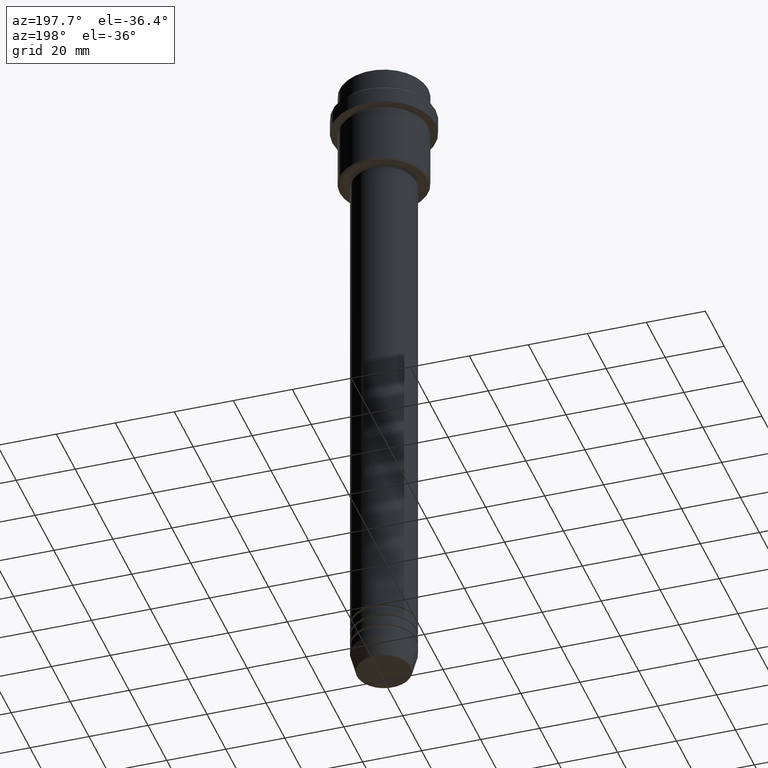
[diagram: clean part render]
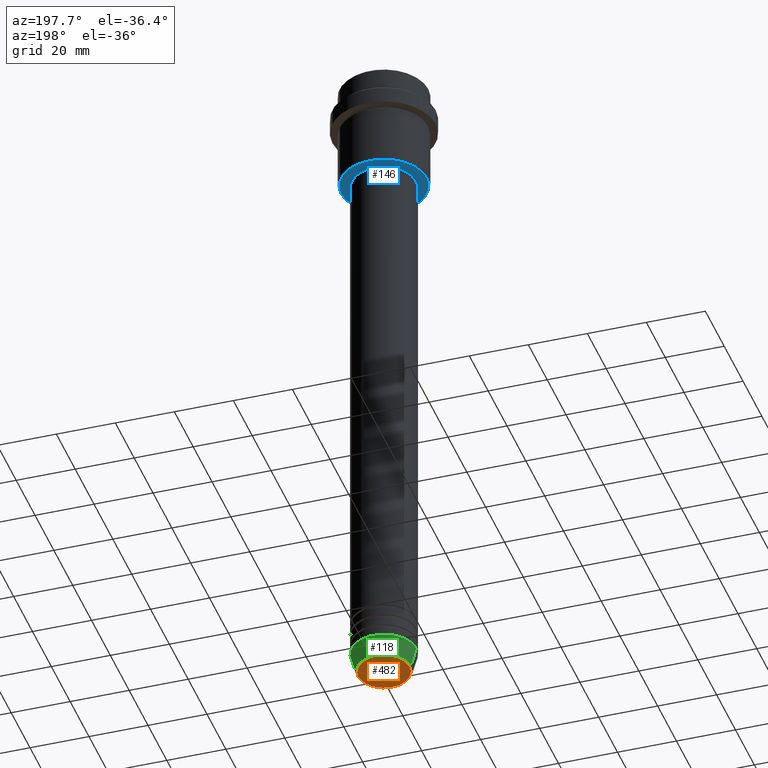
[diagram: same view with three faces highlighted in distinct colors, each labeled with its STEP entity id]
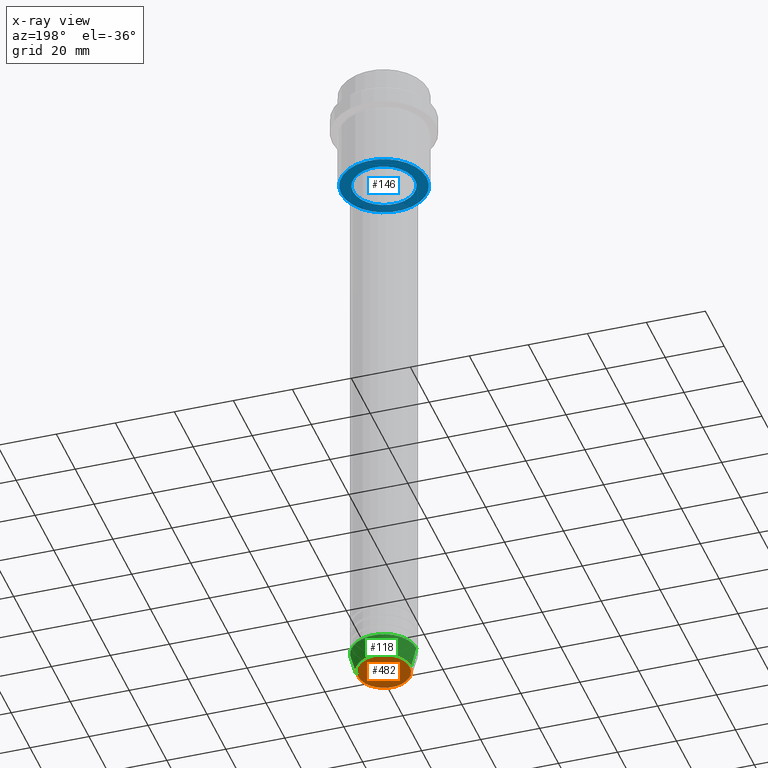
[diagram: x-ray of the same camera — body ghosted, the three highlighted faces saturated]
A machine part, auxiliary view with three faces highlighted in distinct colors.
The next image is the same camera in x-ray (body ghosted, the three faces saturated) — at least one of them is partly hidden behind the body in this view.
Their STEP definitions:

[orange] entity #482 — the highlighted planar face has unit normal (0, -0, 1).
#72 = EDGE_CURVE ( 'NONE', #1139, #1264, #270, .T. ) ;
#233 = CARTESIAN_POINT ( 'NONE',  ( 0.000000000000000000, 0.000000000000000000, -231.0000000000000284 ) ) ;
#261 = PLANE ( 'NONE',  #295 ) ;
#270 = CIRCLE ( 'NONE', #1342, 8.740692158992661831 ) ;
#295 = AXIS2_PLACEMENT_3D ( 'NONE', #684, #1125, #1015 ) ;
#311 = CARTESIAN_POINT ( 'NONE',  ( 8.740692158992661831, 0.000000000000000000, -231.0000000000000284 ) ) ;
#348 = DIRECTION ( 'NONE',  ( 0.000000000000000000, 0.000000000000000000, -1.000000000000000000 ) ) ;
#351 = FACE_OUTER_BOUND ( 'NONE', #472, .T. ) ;
#352 = DIRECTION ( 'NONE',  ( 1.000000000000000000, 0.000000000000000000, 0.000000000000000000 ) ) ;
#353 = EDGE_CURVE ( 'NONE', #1264, #1139, #886, .T. ) ;
#460 = CARTESIAN_POINT ( 'NONE',  ( 0.000000000000000000, 0.000000000000000000, -231.0000000000000284 ) ) ;
#472 = EDGE_LOOP ( 'NONE', ( #1167, #1299 ) ) ;
#482 = ADVANCED_FACE ( 'NONE', ( #351 ), #261, .F. ) ;
#606 = AXIS2_PLACEMENT_3D ( 'NONE', #233, #348, #864 ) ;
#684 = CARTESIAN_POINT ( 'NONE',  ( 0.000000000000000000, 0.000000000000000000, -231.0000000000000284 ) ) ;
#864 = DIRECTION ( 'NONE',  ( 1.000000000000000000, 0.000000000000000000, 0.000000000000000000 ) ) ;
#886 = CIRCLE ( 'NONE', #606, 8.740692158992661831 ) ;
#900 = DIRECTION ( 'NONE',  ( 0.000000000000000000, 0.000000000000000000, -1.000000000000000000 ) ) ;
#938 = CARTESIAN_POINT ( 'NONE',  ( -8.740692158992661831, 1.099999016768740048E-15, -231.0000000000000284 ) ) ;
#1015 = DIRECTION ( 'NONE',  ( 1.000000000000000000, 0.000000000000000000, 0.000000000000000000 ) ) ;
#1125 = DIRECTION ( 'NONE',  ( 0.000000000000000000, -0.000000000000000000, 1.000000000000000000 ) ) ;
#1139 = VERTEX_POINT ( 'NONE', #938 ) ;
#1167 = ORIENTED_EDGE ( 'NONE', *, *, #353, .T. ) ;
#1264 = VERTEX_POINT ( 'NONE', #311 ) ;
#1299 = ORIENTED_EDGE ( 'NONE', *, *, #72, .T. ) ;
#1342 = AXIS2_PLACEMENT_3D ( 'NONE', #460, #900, #352 ) ;

[blue] entity #146 — the highlighted planar face has unit normal (0, 0, -1).
#12 = EDGE_LOOP ( 'NONE', ( #494, #784 ) ) ;
#31 = CARTESIAN_POINT ( 'NONE',  ( 0.000000000000000000, 0.000000000000000000, -36.00000000000001421 ) ) ;
#93 = EDGE_CURVE ( 'NONE', #1098, #273, #868, .T. ) ;
#128 = FACE_BOUND ( 'NONE', #1406, .T. ) ;
#135 = CIRCLE ( 'NONE', #1277, 10.49999999999999289 ) ;
#146 = ADVANCED_FACE ( 'NONE', ( #986, #128 ), #445, .T. ) ;
#192 = DIRECTION ( 'NONE',  ( -1.000000000000000000, 0.000000000000000000, 0.000000000000000000 ) ) ;
#202 = CIRCLE ( 'NONE', #380, 10.49999999999999289 ) ;
#227 = DIRECTION ( 'NONE',  ( -1.000000000000000000, 0.000000000000000000, -0.000000000000000000 ) ) ;
#273 = VERTEX_POINT ( 'NONE', #1286 ) ;
#344 = AXIS2_PLACEMENT_3D ( 'NONE', #567, #1001, #227 ) ;
#378 = ORIENTED_EDGE ( 'NONE', *, *, #763, .T. ) ;
#380 = AXIS2_PLACEMENT_3D ( 'NONE', #1285, #1177, #596 ) ;
#418 = VERTEX_POINT ( 'NONE', #781 ) ;
#424 = CARTESIAN_POINT ( 'NONE',  ( 0.000000000000000000, 0.000000000000000000, -36.00000000000001421 ) ) ;
#430 = AXIS2_PLACEMENT_3D ( 'NONE', #1034, #1268, #192 ) ;
#445 = PLANE ( 'NONE',  #344 ) ;
#494 = ORIENTED_EDGE ( 'NONE', *, *, #712, .T. ) ;
#524 = DIRECTION ( 'NONE',  ( 1.000000000000000000, 0.000000000000000000, 0.000000000000000000 ) ) ;
#532 = VERTEX_POINT ( 'NONE', #590 ) ;
#567 = CARTESIAN_POINT ( 'NONE',  ( 0.000000000000000000, 15.00000000000000000, -36.00000000000001421 ) ) ;
#590 = CARTESIAN_POINT ( 'NONE',  ( 10.49999999999999289, 0.000000000000000000, -36.00000000000001421 ) ) ;
#596 = DIRECTION ( 'NONE',  ( 1.000000000000000000, 0.000000000000000000, 0.000000000000000000 ) ) ;
#712 = EDGE_CURVE ( 'NONE', #273, #1098, #998, .T. ) ;
#763 = EDGE_CURVE ( 'NONE', #418, #532, #202, .T. ) ;
#781 = CARTESIAN_POINT ( 'NONE',  ( -10.49999999999999289, 1.285879139104720042E-15, -36.00000000000001421 ) ) ;
#784 = ORIENTED_EDGE ( 'NONE', *, *, #93, .T. ) ;
#807 = CARTESIAN_POINT ( 'NONE',  ( -14.49999999999998401, 1.806354028742345013E-15, -36.00000000000001421 ) ) ;
#868 = CIRCLE ( 'NONE', #1364, 14.49999999999998401 ) ;
#870 = DIRECTION ( 'NONE',  ( -0.000000000000000000, -0.000000000000000000, 1.000000000000000000 ) ) ;
#986 = FACE_OUTER_BOUND ( 'NONE', #12, .T. ) ;
#998 = CIRCLE ( 'NONE', #430, 14.49999999999998401 ) ;
#1001 = DIRECTION ( 'NONE',  ( 0.000000000000000000, 0.000000000000000000, -1.000000000000000000 ) ) ;
#1027 = ORIENTED_EDGE ( 'NONE', *, *, #1281, .T. ) ;
#1034 = CARTESIAN_POINT ( 'NONE',  ( 0.000000000000000000, 0.000000000000000000, -36.00000000000001421 ) ) ;
#1098 = VERTEX_POINT ( 'NONE', #807 ) ;
#1177 = DIRECTION ( 'NONE',  ( -0.000000000000000000, -0.000000000000000000, 1.000000000000000000 ) ) ;
#1268 = DIRECTION ( 'NONE',  ( 0.000000000000000000, 0.000000000000000000, -1.000000000000000000 ) ) ;
#1277 = AXIS2_PLACEMENT_3D ( 'NONE', #424, #870, #524 ) ;
#1281 = EDGE_CURVE ( 'NONE', #532, #418, #135, .T. ) ;
#1285 = CARTESIAN_POINT ( 'NONE',  ( 0.000000000000000000, 0.000000000000000000, -36.00000000000001421 ) ) ;
#1286 = CARTESIAN_POINT ( 'NONE',  ( 14.49999999999998401, 0.000000000000000000, -36.00000000000001421 ) ) ;
#1335 = DIRECTION ( 'NONE',  ( -1.000000000000000000, 0.000000000000000000, 0.000000000000000000 ) ) ;
#1345 = DIRECTION ( 'NONE',  ( 0.000000000000000000, 0.000000000000000000, -1.000000000000000000 ) ) ;
#1364 = AXIS2_PLACEMENT_3D ( 'NONE', #31, #1345, #1335 ) ;
#1406 = EDGE_LOOP ( 'NONE', ( #1027, #378 ) ) ;

[green] entity #118 — the highlighted conical surface has half-angle 15 deg.
#11 = CARTESIAN_POINT ( 'NONE',  ( 11.00000000000000000, 0.000000000000000000, -224.0000000000000284 ) ) ;
#16 = DIRECTION ( 'NONE',  ( 1.000000000000000000, 0.000000000000000000, 0.000000000000000000 ) ) ;
#27 = EDGE_LOOP ( 'NONE', ( #987, #914, #1163, #1373 ) ) ;
#55 = DIRECTION ( 'NONE',  ( -0.000000000000000000, -0.000000000000000000, 1.000000000000000000 ) ) ;
#56 = VERTEX_POINT ( 'NONE', #451 ) ;
#68 = VERTEX_POINT ( 'NONE', #11 ) ;
#118 = ADVANCED_FACE ( 'NONE', ( #794 ), #723, .T. ) ;
#183 = DIRECTION ( 'NONE',  ( 0.2588190451025205174, 0.000000000000000000, 0.9659258262890684232 ) ) ;
#286 = LINE ( 'NONE', #1160, #476 ) ;
#365 = CIRCLE ( 'NONE', #1187, 9.223655072137201927 ) ;
#451 = CARTESIAN_POINT ( 'NONE',  ( -9.223655072137201927, 1.238341722557647793E-15, -230.6294095225512990 ) ) ;
#474 = CARTESIAN_POINT ( 'NONE',  ( 0.000000000000000000, 0.000000000000000000, -224.0000000000000284 ) ) ;
#476 = VECTOR ( 'NONE', #183, 1000.000000000000114 ) ;
#582 = CARTESIAN_POINT ( 'NONE',  ( -11.00000000000000000, 1.347111479062088405E-15, -224.0000000000000284 ) ) ;
#586 = VERTEX_POINT ( 'NONE', #1279 ) ;
#597 = CARTESIAN_POINT ( 'NONE',  ( 0.000000000000000000, 0.000000000000000000, -230.6294095225512990 ) ) ;
#678 = CIRCLE ( 'NONE', #865, 11.00000000000000000 ) ;
#682 = DIRECTION ( 'NONE',  ( 1.000000000000000000, 0.000000000000000000, 0.000000000000000000 ) ) ;
#690 = LINE ( 'NONE', #582, #1230 ) ;
#723 = CONICAL_SURFACE ( 'NONE', #1415, 11.00000000000000000, 0.2617993877991491303 ) ;
#783 = DIRECTION ( 'NONE',  ( -0.000000000000000000, -0.000000000000000000, 1.000000000000000000 ) ) ;
#794 = FACE_OUTER_BOUND ( 'NONE', #27, .T. ) ;
#820 = DIRECTION ( 'NONE',  ( 1.000000000000000000, 0.000000000000000000, 0.000000000000000000 ) ) ;
#865 = AXIS2_PLACEMENT_3D ( 'NONE', #474, #1332, #682 ) ;
#898 = DIRECTION ( 'NONE',  ( -0.2588190451025205174, 3.169619151431761243E-17, 0.9659258262890684232 ) ) ;
#903 = CARTESIAN_POINT ( 'NONE',  ( -11.00000000000000000, 1.347111479062088405E-15, -224.0000000000000284 ) ) ;
#914 = ORIENTED_EDGE ( 'NONE', *, *, #948, .T. ) ;
#948 = EDGE_CURVE ( 'NONE', #56, #1039, #690, .T. ) ;
#960 = EDGE_CURVE ( 'NONE', #68, #1039, #678, .T. ) ;
#987 = ORIENTED_EDGE ( 'NONE', *, *, #1383, .T. ) ;
#1039 = VERTEX_POINT ( 'NONE', #903 ) ;
#1066 = EDGE_CURVE ( 'NONE', #586, #68, #286, .T. ) ;
#1102 = CARTESIAN_POINT ( 'NONE',  ( 0.000000000000000000, 0.000000000000000000, -224.0000000000000284 ) ) ;
#1160 = CARTESIAN_POINT ( 'NONE',  ( 11.00000000000000000, 0.000000000000000000, -224.0000000000000284 ) ) ;
#1163 = ORIENTED_EDGE ( 'NONE', *, *, #960, .F. ) ;
#1187 = AXIS2_PLACEMENT_3D ( 'NONE', #597, #55, #820 ) ;
#1230 = VECTOR ( 'NONE', #898, 1000.000000000000114 ) ;
#1279 = CARTESIAN_POINT ( 'NONE',  ( 9.223655072137201927, 0.000000000000000000, -230.6294095225512990 ) ) ;
#1332 = DIRECTION ( 'NONE',  ( -0.000000000000000000, -0.000000000000000000, 1.000000000000000000 ) ) ;
#1373 = ORIENTED_EDGE ( 'NONE', *, *, #1066, .F. ) ;
#1383 = EDGE_CURVE ( 'NONE', #586, #56, #365, .T. ) ;
#1415 = AXIS2_PLACEMENT_3D ( 'NONE', #1102, #783, #16 ) ;